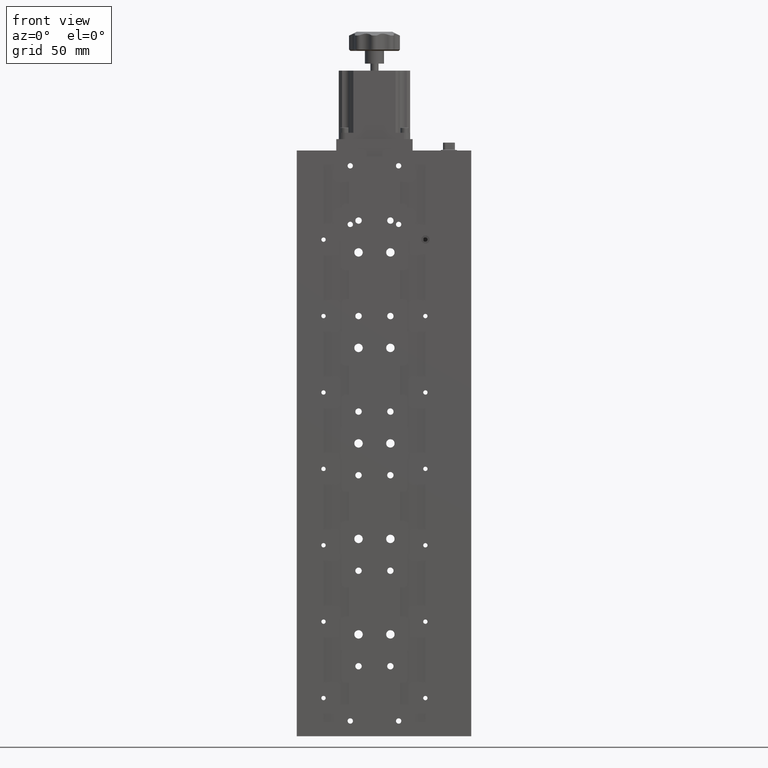
[diagram: clean part render]
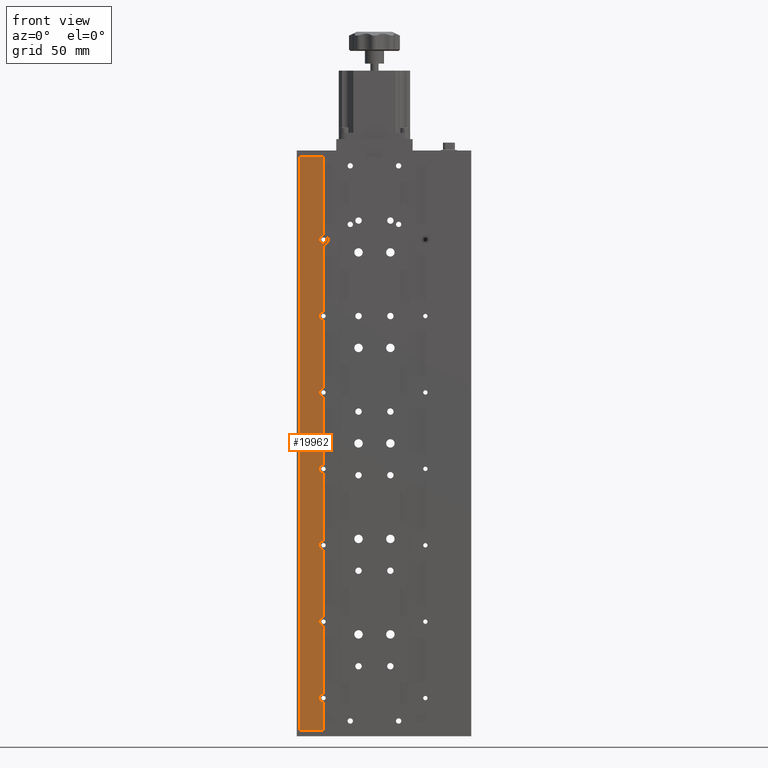
[diagram: same view with one face highlighted and labeled with its STEP entity id]
A machine part, front view. The second image highlights one B-rep face of the part: STEP entity #19962.
In plain terms, the highlighted planar face has unit normal (-0, 1, 0).
Its self-contained STEP definition (entity closure, byte-faithful):
#274 = DIRECTION ( 'NONE',  ( -3.029454718961576000E-018, 1.000000000000000000, 0.0000000000000000000 ) ) ;
#946 = DIRECTION ( 'NONE',  ( -0.0000000000000000000, -1.000000000000000000, -0.0000000000000000000 ) ) ;
#2041 = CARTESIAN_POINT ( 'NONE',  ( -69.61080835603993900, -10.41765062064795300, 225.0000000000000300 ) ) ;
#2570 = EDGE_CURVE ( 'NONE', #7686, #10374, #6685, .T. ) ;
#2815 = AXIS2_PLACEMENT_3D ( 'NONE', #15484, #38605, #18825 ) ;
#2878 = CARTESIAN_POINT ( 'NONE',  ( -74.98580835603993900, -10.41765062064795100, -225.0000000000000300 ) ) ;
#3094 = DIRECTION ( 'NONE',  ( -0.0000000000000000000, -1.000000000000000000, -0.0000000000000000000 ) ) ;
#3819 = LINE ( 'NONE', #22462, #37972 ) ;
#4351 = CARTESIAN_POINT ( 'NONE',  ( -50.61080835603994600, -10.41765062064795100, 225.0000000000000300 ) ) ;
#4564 = LINE ( 'NONE', #30207, #12338 ) ;
#4754 = EDGE_CURVE ( 'NONE', #26342, #38367, #39481, .T. ) ;
#5654 = VECTOR ( 'NONE', #34203, 1000.000000000000000 ) ;
#6442 = AXIS2_PLACEMENT_3D ( 'NONE', #22884, #3094, #26253 ) ;
#6685 = LINE ( 'NONE', #30902, #5654 ) ;
#6809 = CARTESIAN_POINT ( 'NONE',  ( -50.61080835603994600, -10.41765062064795100, -16.75000000000005000 ) ) ;
#6863 = ORIENTED_EDGE ( 'NONE', *, *, #22815, .F. ) ;
#7480 = ORIENTED_EDGE ( 'NONE', *, *, #26944, .F. ) ;
#7686 = VERTEX_POINT ( 'NONE', #4351 ) ;
#7830 = DIRECTION ( 'NONE',  ( -3.029454718961576000E-018, 1.000000000000000000, 0.0000000000000000000 ) ) ;
#8101 = EDGE_CURVE ( 'NONE', #16094, #13304, #4564, .T. ) ;
#8259 = CARTESIAN_POINT ( 'NONE',  ( -50.61080835603994600, -10.41765062064795300, 163.2499999999999400 ) ) ;
#8631 = VERTEX_POINT ( 'NONE', #10187 ) ;
#8854 = CARTESIAN_POINT ( 'NONE',  ( -69.61080835603993900, -10.41765062064795100, -225.0000000000000300 ) ) ;
#9166 = ORIENTED_EDGE ( 'NONE', *, *, #15471, .F. ) ;
#9632 = VERTEX_POINT ( 'NONE', #39043 ) ;
#10097 = DIRECTION ( 'NONE',  ( 0.0000000000000000000, 0.0000000000000000000, -1.000000000000000000 ) ) ;
#10187 = CARTESIAN_POINT ( 'NONE',  ( -50.61080835603994600, -10.41765062064795300, 96.74999999999994300 ) ) ;
#10367 = EDGE_CURVE ( 'NONE', #37707, #9632, #26165, .T. ) ;
#10374 = VERTEX_POINT ( 'NONE', #8259 ) ;
#11119 = CARTESIAN_POINT ( 'NONE',  ( -50.61080835603994600, -10.41765062064795100, -196.7500000000000300 ) ) ;
#11638 = VECTOR ( 'NONE', #22632, 1000.000000000000000 ) ;
#12181 = DIRECTION ( 'NONE',  ( 0.0000000000000000000, 0.0000000000000000000, -1.000000000000000000 ) ) ;
#12338 = VECTOR ( 'NONE', #33519, 1000.000000000000000 ) ;
#12622 = EDGE_CURVE ( 'NONE', #28859, #25709, #42479, .T. ) ;
#12664 = LINE ( 'NONE', #2878, #11638 ) ;
#12761 = ORIENTED_EDGE ( 'NONE', *, *, #25400, .T. ) ;
#12831 = PLANE ( 'NONE',  #14259 ) ;
#13266 = DIRECTION ( 'NONE',  ( -0.0000000000000000000, -1.000000000000000000, -0.0000000000000000000 ) ) ;
#13304 = VERTEX_POINT ( 'NONE', #30116 ) ;
#13435 = VECTOR ( 'NONE', #32222, 1000.000000000000000 ) ;
#13606 = DIRECTION ( 'NONE',  ( 0.0000000000000000000, 0.0000000000000000000, -1.000000000000000000 ) ) ;
#13640 = CARTESIAN_POINT ( 'NONE',  ( -50.61080835603994600, -10.41765062064795100, 225.0000000000000300 ) ) ;
#14259 = AXIS2_PLACEMENT_3D ( 'NONE', #36088, #16298, #39426 ) ;
#15471 = EDGE_CURVE ( 'NONE', #13304, #38366, #12664, .T. ) ;
#15484 = CARTESIAN_POINT ( 'NONE',  ( -50.61080835603987500, -10.41765062064795100, -140.0000000000000300 ) ) ;
#15991 = DIRECTION ( 'NONE',  ( 0.0000000000000000000, 0.0000000000000000000, -1.000000000000000000 ) ) ;
#16094 = VERTEX_POINT ( 'NONE', #42730 ) ;
#16298 = DIRECTION ( 'NONE',  ( -3.029454718961576000E-018, 1.000000000000000000, 0.0000000000000000000 ) ) ;
#16394 = FACE_OUTER_BOUND ( 'NONE', #39231, .T. ) ;
#17773 = EDGE_CURVE ( 'NONE', #8631, #28859, #3819, .T. ) ;
#18172 = CIRCLE ( 'NONE', #37471, 3.249999999999996000 ) ;
#18209 = CARTESIAN_POINT ( 'NONE',  ( -50.61080835603987500, -10.41765062064795100, -200.0000000000000300 ) ) ;
#18825 = DIRECTION ( 'NONE',  ( -1.000000000000000000, 0.0000000000000000000, 0.0000000000000000000 ) ) ;
#19385 = CARTESIAN_POINT ( 'NONE',  ( -50.61080835603994600, -10.41765062064795300, 36.74999999999995700 ) ) ;
#19534 = AXIS2_PLACEMENT_3D ( 'NONE', #20035, #274, #23357 ) ;
#19788 = VERTEX_POINT ( 'NONE', #2041 ) ;
#19962 = ADVANCED_FACE ( 'NONE', ( #16394 ), #12831, .F. ) ;
#20035 = CARTESIAN_POINT ( 'NONE',  ( -50.61080835603987500, -10.41765062064795100, -20.00000000000004600 ) ) ;
#20362 = VECTOR ( 'NONE', #10097, 1000.000000000000000 ) ;
#20471 = VECTOR ( 'NONE', #40391, 1000.000000000000000 ) ;
#20707 = CARTESIAN_POINT ( 'NONE',  ( -50.61080835603987500, -10.41765062064795300, 99.99999999999994300 ) ) ;
#20782 = ORIENTED_EDGE ( 'NONE', *, *, #21152, .T. ) ;
#21152 = EDGE_CURVE ( 'NONE', #7686, #19788, #39839, .T. ) ;
#21393 = CARTESIAN_POINT ( 'NONE',  ( -50.61080835603994600, -10.41765062064795100, 225.0000000000000300 ) ) ;
#21506 = DIRECTION ( 'NONE',  ( -1.000000000000000000, 0.0000000000000000000, 0.0000000000000000000 ) ) ;
#21653 = EDGE_CURVE ( 'NONE', #42764, #26496, #30934, .T. ) ;
#21796 = EDGE_CURVE ( 'NONE', #25709, #24086, #32949, .T. ) ;
#22107 = VECTOR ( 'NONE', #41686, 1000.000000000000000 ) ;
#22462 = CARTESIAN_POINT ( 'NONE',  ( -50.61080835603994600, -10.41765062064795100, 225.0000000000000300 ) ) ;
#22632 = DIRECTION ( 'NONE',  ( -1.000000000000000000, -3.029454718961576000E-018, -0.0000000000000000000 ) ) ;
#22757 = EDGE_CURVE ( 'NONE', #10374, #37707, #34363, .T. ) ;
#22815 = EDGE_CURVE ( 'NONE', #32780, #38367, #30240, .T. ) ;
#22884 = CARTESIAN_POINT ( 'NONE',  ( -50.61080835603987500, -10.41765062064795300, 39.99999999999995000 ) ) ;
#23082 = VECTOR ( 'NONE', #13606, 1000.000000000000000 ) ;
#23188 = CIRCLE ( 'NONE', #38649, 3.249999999999996000 ) ;
#23357 = DIRECTION ( 'NONE',  ( -1.000000000000000000, 0.0000000000000000000, 0.0000000000000000000 ) ) ;
#24004 = DIRECTION ( 'NONE',  ( 0.0000000000000000000, 0.0000000000000000000, -1.000000000000000000 ) ) ;
#24086 = VERTEX_POINT ( 'NONE', #6809 ) ;
#24368 = CARTESIAN_POINT ( 'NONE',  ( -50.61080835603994600, -10.41765062064795100, -136.7500000000000300 ) ) ;
#24664 = CARTESIAN_POINT ( 'NONE',  ( -50.61080835603994600, -10.41765062064795100, -76.75000000000004300 ) ) ;
#25127 = ORIENTED_EDGE ( 'NONE', *, *, #10367, .F. ) ;
#25400 = EDGE_CURVE ( 'NONE', #32780, #26496, #18172, .T. ) ;
#25709 = VERTEX_POINT ( 'NONE', #19385 ) ;
#25909 = ORIENTED_EDGE ( 'NONE', *, *, #17773, .F. ) ;
#25951 = EDGE_CURVE ( 'NONE', #16094, #32208, #23188, .T. ) ;
#26165 = LINE ( 'NONE', #21393, #42729 ) ;
#26253 = DIRECTION ( 'NONE',  ( 0.0000000000000000000, 0.0000000000000000000, -1.000000000000000000 ) ) ;
#26342 = VERTEX_POINT ( 'NONE', #30783 ) ;
#26496 = VERTEX_POINT ( 'NONE', #24664 ) ;
#26944 = EDGE_CURVE ( 'NONE', #9632, #8631, #36804, .T. ) ;
#27674 = CARTESIAN_POINT ( 'NONE',  ( -50.61080835603987500, -10.41765062064795100, -80.00000000000004300 ) ) ;
#27717 = CARTESIAN_POINT ( 'NONE',  ( -50.61080835603994600, -10.41765062064795100, -83.25000000000002800 ) ) ;
#28174 = ORIENTED_EDGE ( 'NONE', *, *, #33516, .F. ) ;
#28293 = LINE ( 'NONE', #13640, #20471 ) ;
#28859 = VERTEX_POINT ( 'NONE', #30555 ) ;
#28892 = CARTESIAN_POINT ( 'NONE',  ( -74.98580835603993900, -10.41765062064795100, 225.0000000000000300 ) ) ;
#29167 = VECTOR ( 'NONE', #12181, 1000.000000000000000 ) ;
#29304 = AXIS2_PLACEMENT_3D ( 'NONE', #20707, #946, #24004 ) ;
#29530 = ORIENTED_EDGE ( 'NONE', *, *, #25951, .T. ) ;
#30116 = CARTESIAN_POINT ( 'NONE',  ( -50.61080835603994600, -10.41765062064795100, -225.0000000000000300 ) ) ;
#30137 = CARTESIAN_POINT ( 'NONE',  ( -50.61080835603994600, -10.41765062064795100, 225.0000000000000300 ) ) ;
#30207 = CARTESIAN_POINT ( 'NONE',  ( -50.61080835603994600, -10.41765062064795100, 225.0000000000000300 ) ) ;
#30240 = LINE ( 'NONE', #39882, #20362 ) ;
#30555 = CARTESIAN_POINT ( 'NONE',  ( -50.61080835603994600, -10.41765062064795300, 43.24999999999995000 ) ) ;
#30749 = CIRCLE ( 'NONE', #19534, 3.249999999999996000 ) ;
#30783 = CARTESIAN_POINT ( 'NONE',  ( -50.61080835603994600, -10.41765062064795100, -143.2500000000000600 ) ) ;
#30857 = ORIENTED_EDGE ( 'NONE', *, *, #8101, .F. ) ;
#30902 = CARTESIAN_POINT ( 'NONE',  ( -50.61080835603994600, -10.41765062064795100, 225.0000000000000300 ) ) ;
#30934 = LINE ( 'NONE', #38350, #22107 ) ;
#31006 = DIRECTION ( 'NONE',  ( -1.000000000000000000, 0.0000000000000000000, 0.0000000000000000000 ) ) ;
#31053 = EDGE_CURVE ( 'NONE', #42764, #24086, #30749, .T. ) ;
#31092 = AXIS2_PLACEMENT_3D ( 'NONE', #33087, #13266, #36385 ) ;
#32208 = VERTEX_POINT ( 'NONE', #11119 ) ;
#32222 = DIRECTION ( 'NONE',  ( -1.000000000000000000, -3.029454718961576000E-018, -0.0000000000000000000 ) ) ;
#32673 = ORIENTED_EDGE ( 'NONE', *, *, #4754, .T. ) ;
#32720 = ORIENTED_EDGE ( 'NONE', *, *, #12622, .F. ) ;
#32780 = VERTEX_POINT ( 'NONE', #27717 ) ;
#32949 = LINE ( 'NONE', #30137, #23082 ) ;
#33087 = CARTESIAN_POINT ( 'NONE',  ( -50.61080835603987500, -10.41765062064795300, 159.9999999999999400 ) ) ;
#33516 = EDGE_CURVE ( 'NONE', #26342, #32208, #28293, .T. ) ;
#33519 = DIRECTION ( 'NONE',  ( 0.0000000000000000000, 0.0000000000000000000, -1.000000000000000000 ) ) ;
#34203 = DIRECTION ( 'NONE',  ( 0.0000000000000000000, 0.0000000000000000000, -1.000000000000000000 ) ) ;
#34363 = CIRCLE ( 'NONE', #31092, 3.250000000000002700 ) ;
#34714 = DIRECTION ( 'NONE',  ( 0.0000000000000000000, 0.0000000000000000000, -1.000000000000000000 ) ) ;
#35805 = ORIENTED_EDGE ( 'NONE', *, *, #2570, .F. ) ;
#36088 = CARTESIAN_POINT ( 'NONE',  ( -74.98580835603993900, -10.41765062064795100, -225.0000000000000300 ) ) ;
#36269 = CARTESIAN_POINT ( 'NONE',  ( -50.61080835603994600, -10.41765062064795300, 156.7499999999999400 ) ) ;
#36385 = DIRECTION ( 'NONE',  ( 0.0000000000000000000, 0.0000000000000000000, -1.000000000000000000 ) ) ;
#36509 = ORIENTED_EDGE ( 'NONE', *, *, #21653, .F. ) ;
#36804 = CIRCLE ( 'NONE', #29304, 3.250000000000002700 ) ;
#37080 = CARTESIAN_POINT ( 'NONE',  ( -69.61080835603993900, -10.41765062064795100, -225.0000000000000300 ) ) ;
#37471 = AXIS2_PLACEMENT_3D ( 'NONE', #27674, #7830, #31006 ) ;
#37529 = EDGE_CURVE ( 'NONE', #19788, #38366, #37907, .T. ) ;
#37707 = VERTEX_POINT ( 'NONE', #36269 ) ;
#37776 = CARTESIAN_POINT ( 'NONE',  ( -50.61080835603994600, -10.41765062064795100, -23.25000000000004300 ) ) ;
#37782 = ORIENTED_EDGE ( 'NONE', *, *, #21796, .F. ) ;
#37907 = LINE ( 'NONE', #8854, #29167 ) ;
#37972 = VECTOR ( 'NONE', #15991, 1000.000000000000000 ) ;
#38350 = CARTESIAN_POINT ( 'NONE',  ( -50.61080835603994600, -10.41765062064795100, 225.0000000000000300 ) ) ;
#38366 = VERTEX_POINT ( 'NONE', #37080 ) ;
#38367 = VERTEX_POINT ( 'NONE', #24368 ) ;
#38605 = DIRECTION ( 'NONE',  ( -3.029454718961576000E-018, 1.000000000000000000, 0.0000000000000000000 ) ) ;
#38649 = AXIS2_PLACEMENT_3D ( 'NONE', #18209, #41323, #21506 ) ;
#39043 = CARTESIAN_POINT ( 'NONE',  ( -50.61080835603994600, -10.41765062064795300, 103.2499999999999600 ) ) ;
#39231 = EDGE_LOOP ( 'NONE', ( #40461, #35805, #20782, #40669, #9166, #30857, #29530, #28174, #32673, #6863, #12761, #36509, #41816, #37782, #32720, #25909, #7480, #25127 ) ) ;
#39426 = DIRECTION ( 'NONE',  ( -1.000000000000000000, -3.029454718961576000E-018, 0.0000000000000000000 ) ) ;
#39481 = CIRCLE ( 'NONE', #2815, 3.249999999999996000 ) ;
#39839 = LINE ( 'NONE', #28892, #13435 ) ;
#39882 = CARTESIAN_POINT ( 'NONE',  ( -50.61080835603994600, -10.41765062064795100, 225.0000000000000300 ) ) ;
#40391 = DIRECTION ( 'NONE',  ( 0.0000000000000000000, 0.0000000000000000000, -1.000000000000000000 ) ) ;
#40461 = ORIENTED_EDGE ( 'NONE', *, *, #22757, .F. ) ;
#40669 = ORIENTED_EDGE ( 'NONE', *, *, #37529, .T. ) ;
#41323 = DIRECTION ( 'NONE',  ( -3.029454718961576000E-018, 1.000000000000000000, 0.0000000000000000000 ) ) ;
#41686 = DIRECTION ( 'NONE',  ( 0.0000000000000000000, 0.0000000000000000000, -1.000000000000000000 ) ) ;
#41816 = ORIENTED_EDGE ( 'NONE', *, *, #31053, .T. ) ;
#42479 = CIRCLE ( 'NONE', #6442, 3.249999999999996000 ) ;
#42729 = VECTOR ( 'NONE', #34714, 1000.000000000000000 ) ;
#42730 = CARTESIAN_POINT ( 'NONE',  ( -50.61080835603994600, -10.41765062064795100, -203.2500000000000300 ) ) ;
#42764 = VERTEX_POINT ( 'NONE', #37776 ) ;